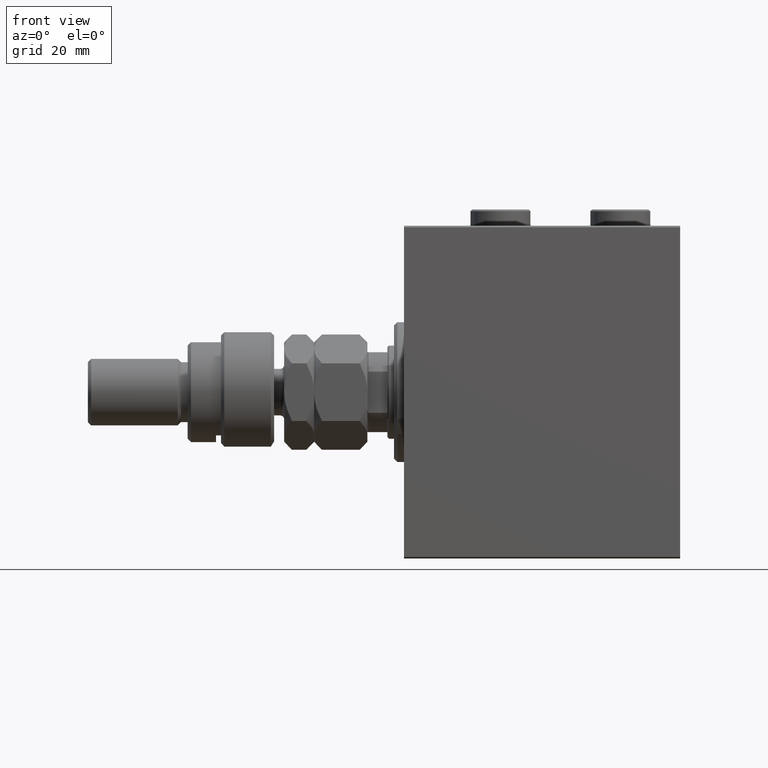
[diagram: clean part render]
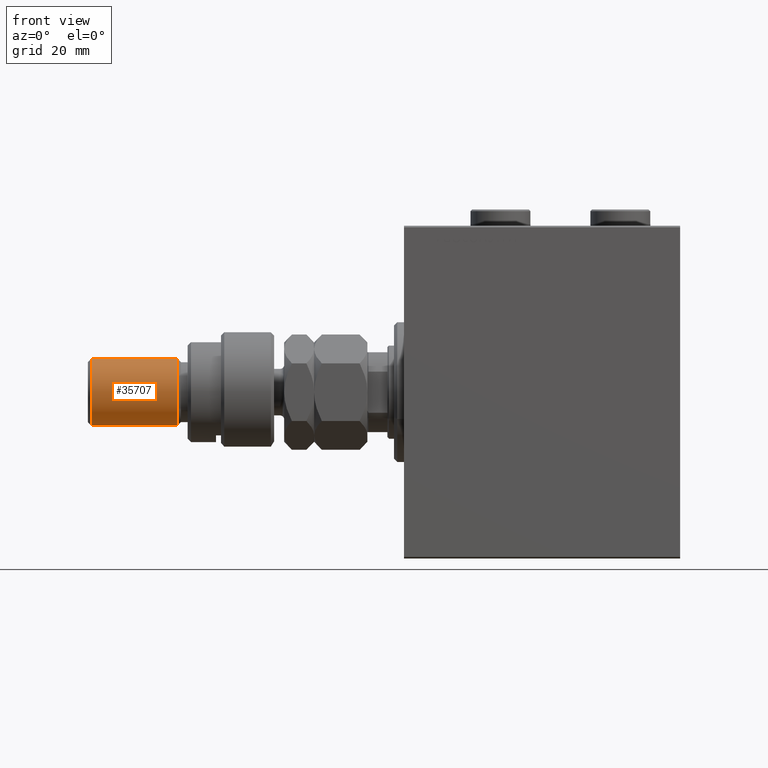
[diagram: same view with one face highlighted and labeled with its STEP entity id]
A machine part, front view. The second image highlights one B-rep face of the part: STEP entity #35707.
In plain terms, the highlighted cylindrical surface (edge-blend (fillet) strip) has radius 10 mm, axis along (1, -0, -0).
Its self-contained STEP definition (entity closure, byte-faithful):
#160 = VERTEX_POINT ( 'NONE', #6638 ) ;
#525 = CIRCLE ( 'NONE', #11358, 10.00000000000000000 ) ;
#1386 = DIRECTION ( 'NONE',  ( -0.000000000000000000, -0.000000000000000000, 1.000000000000000000 ) ) ;
#4082 = EDGE_CURVE ( 'NONE', #12789, #43628, #525, .T. ) ;
#5536 = ORIENTED_EDGE ( 'NONE', *, *, #4082, .T. ) ;
#6638 = CARTESIAN_POINT ( 'NONE',  ( -10.00000000000000000, 0.000000000000000000, 29.00000000000000711 ) ) ;
#10654 = EDGE_CURVE ( 'NONE', #160, #45042, #40944, .T. ) ;
#10749 = EDGE_CURVE ( 'NONE', #12789, #45042, #32915, .T. ) ;
#11358 = AXIS2_PLACEMENT_3D ( 'NONE', #46048, #19407, #45577 ) ;
#12789 = VERTEX_POINT ( 'NONE', #33646 ) ;
#13347 = ORIENTED_EDGE ( 'NONE', *, *, #45532, .T. ) ;
#13864 = DIRECTION ( 'NONE',  ( -0.000000000000000000, -0.000000000000000000, -1.000000000000000000 ) ) ;
#13929 = CARTESIAN_POINT ( 'NONE',  ( 0.000000000000000000, 0.000000000000000000, 56.00000000000000711 ) ) ;
#14164 = DIRECTION ( 'NONE',  ( -1.000000000000000000, 0.000000000000000000, 0.000000000000000000 ) ) ;
#14472 = DIRECTION ( 'NONE',  ( -0.000000000000000000, -0.000000000000000000, -1.000000000000000000 ) ) ;
#17730 = AXIS2_PLACEMENT_3D ( 'NONE', #34636, #1386, #24190 ) ;
#18871 = CARTESIAN_POINT ( 'NONE',  ( -10.00000000000000000, 0.000000000000000000, 54.99999999999998579 ) ) ;
#19407 = DIRECTION ( 'NONE',  ( 0.000000000000000000, 0.000000000000000000, -1.000000000000000000 ) ) ;
#20803 = VECTOR ( 'NONE', #13864, 1000.000000000000000 ) ;
#22959 = AXIS2_PLACEMENT_3D ( 'NONE', #13929, #47615, #14164 ) ;
#23985 = CARTESIAN_POINT ( 'NONE',  ( 10.00000000000000000, 1.224646799147353256E-15, 29.00000000000000711 ) ) ;
#24190 = DIRECTION ( 'NONE',  ( 1.000000000000000000, 0.000000000000000000, 0.000000000000000000 ) ) ;
#28486 = CYLINDRICAL_SURFACE ( 'NONE', #22959, 10.00000000000000000 ) ;
#31815 = CARTESIAN_POINT ( 'NONE',  ( -10.00000000000000000, 0.000000000000000000, 56.00000000000000711 ) ) ;
#32915 = LINE ( 'NONE', #36778, #46386 ) ;
#33646 = CARTESIAN_POINT ( 'NONE',  ( 10.00000000000000000, 1.224646799147353256E-15, 54.99999999999998579 ) ) ;
#34636 = CARTESIAN_POINT ( 'NONE',  ( 0.000000000000000000, 0.000000000000000000, 29.00000000000000711 ) ) ;
#35345 = ORIENTED_EDGE ( 'NONE', *, *, #10654, .T. ) ;
#35707 = ADVANCED_FACE ( 'NONE', ( #47148 ), #28486, .T. ) ;
#36778 = CARTESIAN_POINT ( 'NONE',  ( 10.00000000000000000, 1.224646799147353256E-15, 56.00000000000000711 ) ) ;
#38841 = EDGE_LOOP ( 'NONE', ( #44213, #5536, #13347, #35345 ) ) ;
#40944 = CIRCLE ( 'NONE', #17730, 10.00000000000000000 ) ;
#42723 = LINE ( 'NONE', #31815, #20803 ) ;
#43628 = VERTEX_POINT ( 'NONE', #18871 ) ;
#44213 = ORIENTED_EDGE ( 'NONE', *, *, #10749, .F. ) ;
#45042 = VERTEX_POINT ( 'NONE', #23985 ) ;
#45532 = EDGE_CURVE ( 'NONE', #43628, #160, #42723, .T. ) ;
#45577 = DIRECTION ( 'NONE',  ( 1.000000000000000000, 0.000000000000000000, 0.000000000000000000 ) ) ;
#46048 = CARTESIAN_POINT ( 'NONE',  ( 0.000000000000000000, 0.000000000000000000, 54.99999999999998579 ) ) ;
#46386 = VECTOR ( 'NONE', #14472, 1000.000000000000000 ) ;
#47148 = FACE_OUTER_BOUND ( 'NONE', #38841, .T. ) ;
#47615 = DIRECTION ( 'NONE',  ( -0.000000000000000000, -0.000000000000000000, -1.000000000000000000 ) ) ;